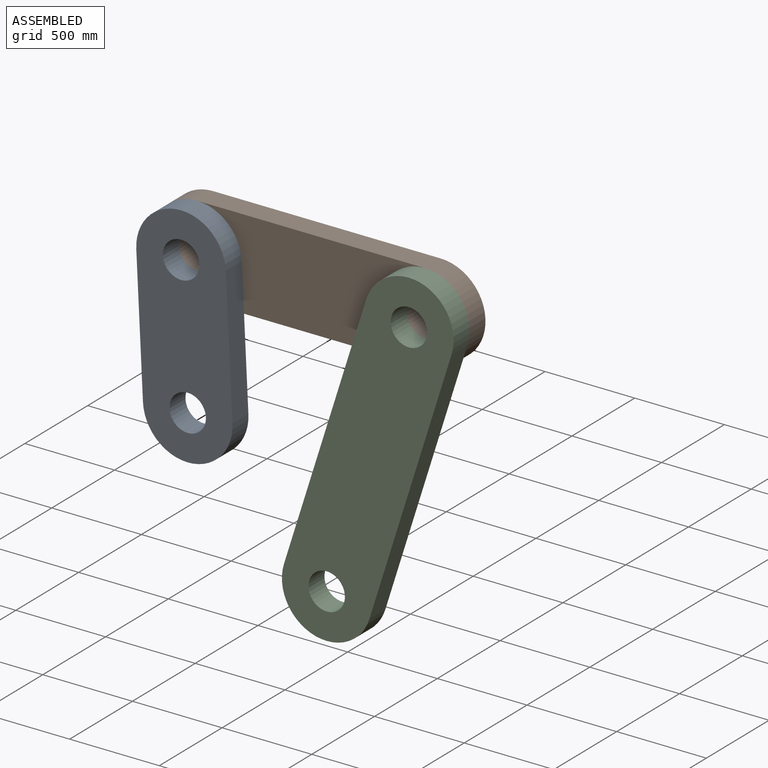
[diagram: assembled view]
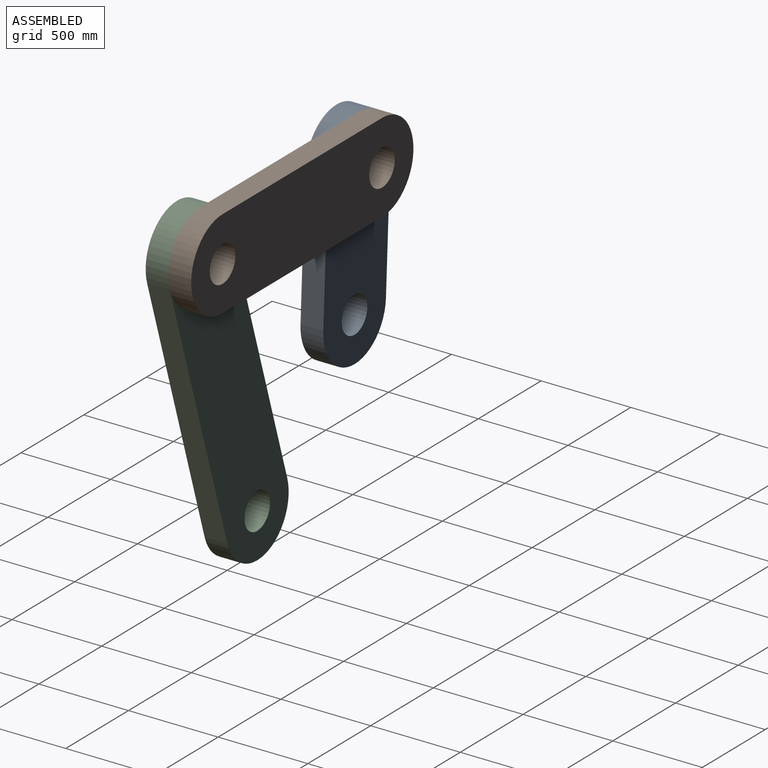
[diagram: assembled view, second angle]
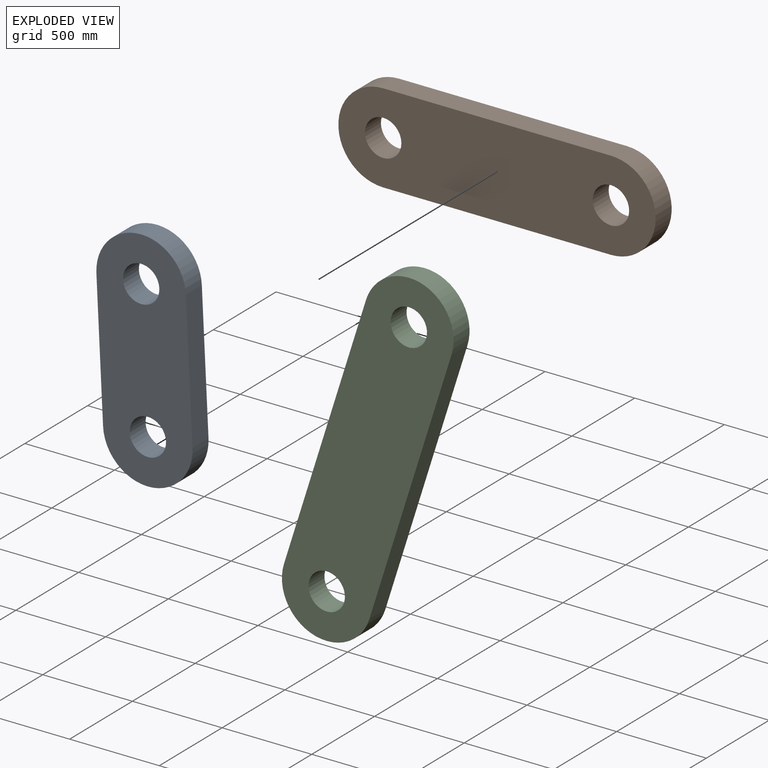
[diagram: exploded view]
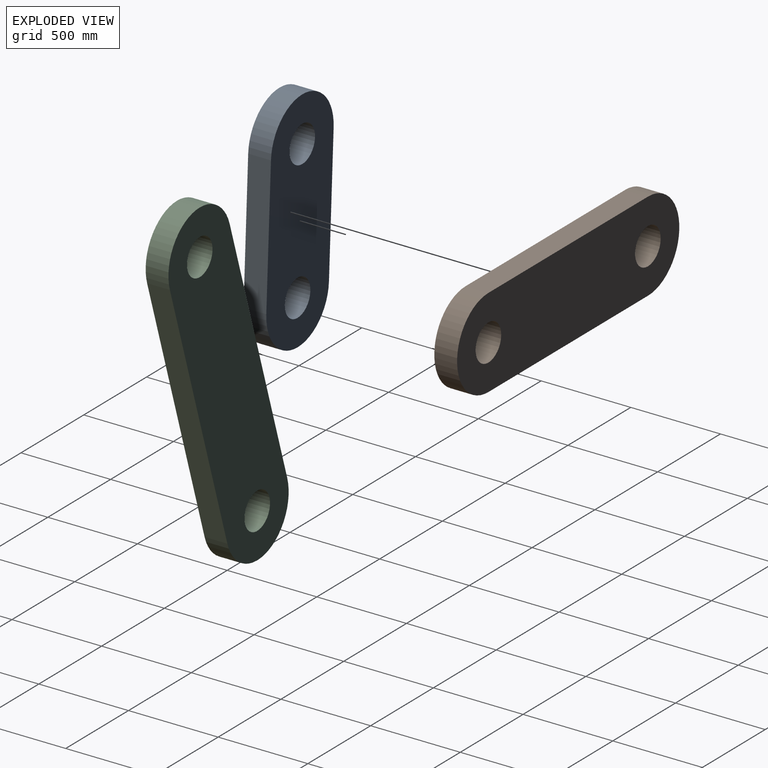
[diagram: exploded view, second angle]
ASSEMBLY  parts=3 mates=2
PART A: 8 faces, bbox 1261.6x127x499.6 mm
  f0: cylinder r=249.81mm len=499.62mm, axis (0,1,0), area 99669.4mm2, adj f1,f4,f6,f7
  f1: plane 762x127mm, normal (0,0,-1), area 96774mm2, adj f0,f2,f6,f7
  f2: cylinder r=249.81mm len=499.62mm, axis (0,1,0), area 99669.4mm2, adj f1,f4,f6,f7
  f3: cylinder r=101.6mm len=203.2mm, axis (0,1,0), area 81073.2mm2, adj f6,f7
  f4: plane 762x127mm, normal (0,0,1), area 96774mm2, adj f0,f2,f6,f7
  f5: cylinder r=101.6mm len=203.2mm, axis (0,1,0), area 81073.2mm2, adj f6,f7
  f6: plane 1261.62x499.62mm, normal (0,-1,0), area 511900mm2, adj f0,f1,f2,f3,f4,f5
  f7: plane 1261.62x499.62mm, normal (0,1,0), area 511900mm2, adj f0,f1,f2,f3,f4,f5
PART B: 8 faces, bbox 1769.6x127x499.6 mm
  f0: cylinder r=249.81mm len=499.62mm, axis (0,1,0), area 99669.4mm2, adj f1,f4,f6,f7
  f1: plane 1270x127mm, normal (0,0,-1), area 161290mm2, adj f0,f2,f6,f7
  f2: cylinder r=249.81mm len=499.62mm, axis (0,1,0), area 99669.4mm2, adj f1,f4,f6,f7
  f3: cylinder r=101.6mm len=203.2mm, axis (0,1,0), area 81073.2mm2, adj f6,f7
  f4: plane 1270x127mm, normal (0,0,1), area 161290mm2, adj f0,f2,f6,f7
  f5: cylinder r=101.6mm len=203.2mm, axis (0,1,0), area 81073.2mm2, adj f6,f7
  f6: plane 1769.62x499.62mm, normal (0,-1,0), area 765705.9mm2, adj f0,f1,f2,f3,f4,f5
  f7: plane 1769.62x499.62mm, normal (0,1,0), area 765705.9mm2, adj f0,f1,f2,f3,f4,f5
PART C: 8 faces, bbox 2023.6x127x499.6 mm
  f0: cylinder r=249.81mm len=499.62mm, axis (0,1,0), area 99669.4mm2, adj f1,f4,f6,f7
  f1: plane 1524x127mm, normal (0,0,-1), area 193548mm2, adj f0,f2,f6,f7
  f2: cylinder r=249.81mm len=499.62mm, axis (0,1,0), area 99669.4mm2, adj f1,f4,f6,f7
  f3: cylinder r=101.6mm len=203.2mm, axis (0,1,0), area 81073.2mm2, adj f6,f7
  f4: plane 1524x127mm, normal (0,0,1), area 193548mm2, adj f0,f2,f6,f7
  f5: cylinder r=101.6mm len=203.2mm, axis (0,1,0), area 81073.2mm2, adj f6,f7
  f6: plane 2023.62x499.62mm, normal (0,-1,0), area 892608.9mm2, adj f0,f1,f2,f3,f4,f5
  f7: plane 2023.62x499.62mm, normal (0,1,0), area 892608.9mm2, adj f0,f1,f2,f3,f4,f5
PLACE A rot(axis=(0,1,0),87.2deg) t=(-391.3,599.74,238.92)mm
PLACE B t=(149.33,726.74,619.46)mm fixed
PLACE C rot(axis=(0,1,0),107.5deg) t=(631.22,599.74,-107.35)mm
MATE revolute C.f0 <-> B.f2  axis (0,1,0) through (860.11,599.74,619.46)mm
MATE revolute A.f0 <-> B.f0  axis (0,1,0) through (-409.89,599.74,619.46)mm
